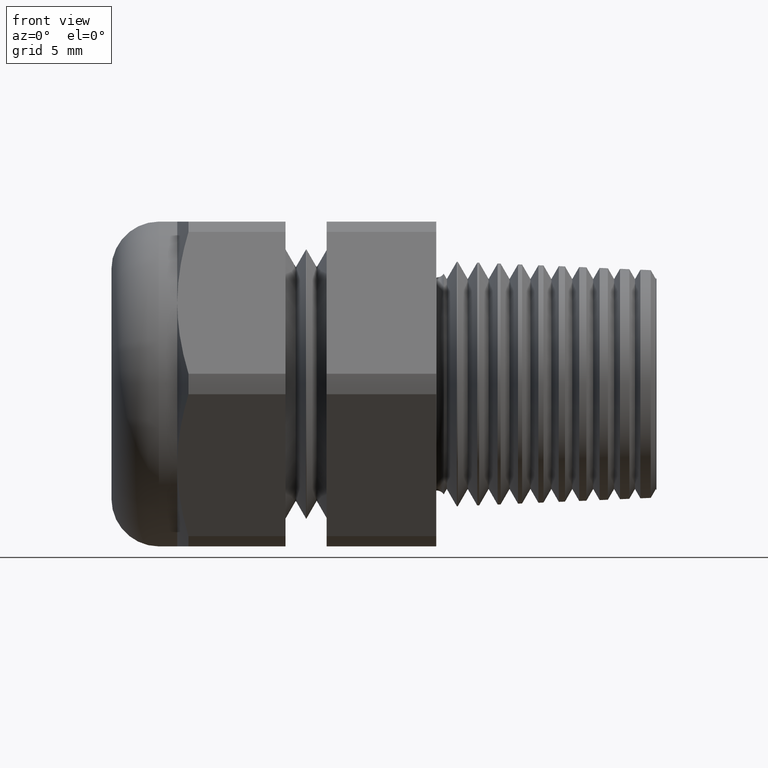
[diagram: clean part render]
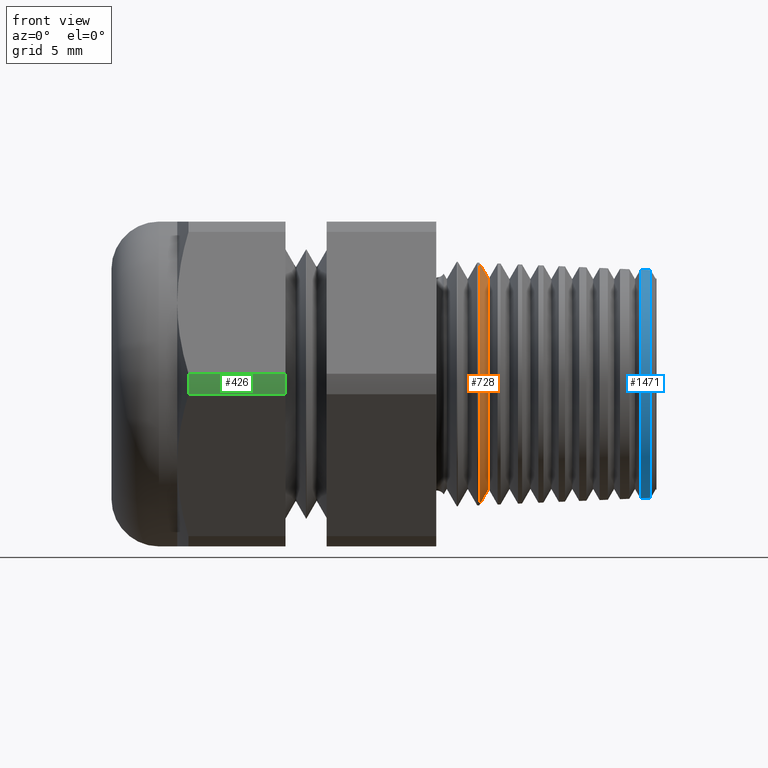
[diagram: same view with three faces highlighted in distinct colors, each labeled with its STEP entity id]
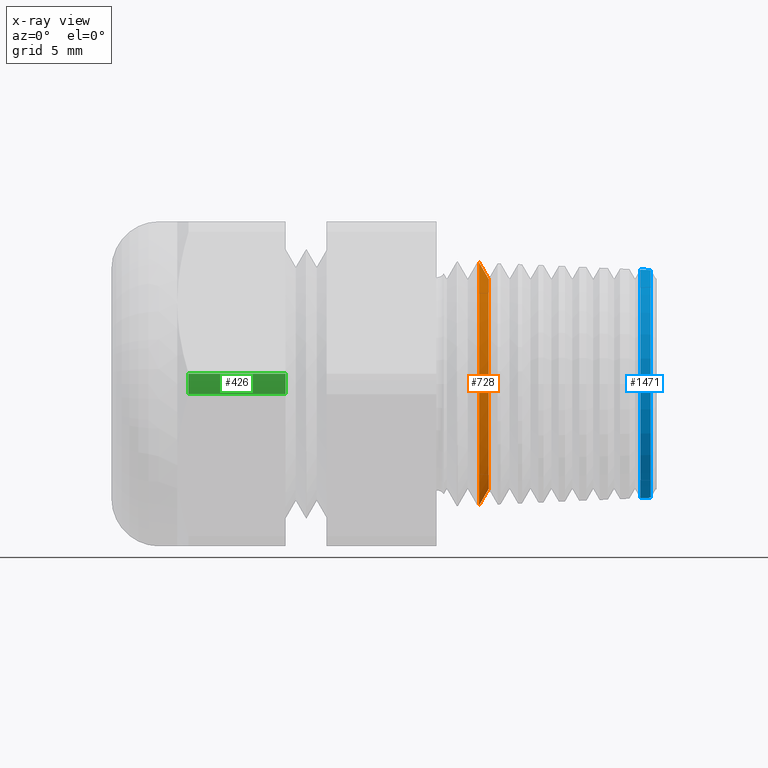
[diagram: x-ray of the same camera — body ghosted, the three highlighted faces saturated]
A machine part, front view with three faces highlighted in distinct colors.
The next image is the same camera in x-ray (body ghosted, the three faces saturated) — at least one of them is partly hidden behind the body in this view.
Their STEP definitions:

[orange] entity #728 — the highlighted conical surface has half-angle 60 deg.
#48 = VERTEX_POINT ( 'NONE', #931 ) ;
#50 = VERTEX_POINT ( 'NONE', #930 ) ;
#52 = EDGE_CURVE ( 'NONE', #467, #50, #993, .T. ) ;
#55 = EDGE_CURVE ( 'NONE', #325, #48, #984, .T. ) ;
#325 = VERTEX_POINT ( 'NONE', #1571 ) ;
#431 = EDGE_CURVE ( 'NONE', #48, #50, #1785, .T. ) ;
#467 = VERTEX_POINT ( 'NONE', #1908 ) ;
#728 = ADVANCED_FACE ( 'NONE', ( #2300 ), #2299, .T. ) ;
#729 = EDGE_LOOP ( 'NONE', ( #730, #731, #780, #781 ) ) ;
#730 = ORIENTED_EDGE ( 'NONE', *, *, #52, .F. ) ;
#731 = ORIENTED_EDGE ( 'NONE', *, *, #732, .T. ) ;
#732 = EDGE_CURVE ( 'NONE', #467, #325, #2298, .T. ) ;
#780 = ORIENTED_EDGE ( 'NONE', *, *, #55, .T. ) ;
#781 = ORIENTED_EDGE ( 'NONE', *, *, #431, .T. ) ;
#930 = CARTESIAN_POINT ( 'NONE',  ( 0.1148962656718725000, 3.981286690388741000E-017, -0.3249835207040991400 ) ) ;
#931 = CARTESIAN_POINT ( 'NONE',  ( 0.1148962656718725000, 0.0000000000000000000, 0.3249835207040991400 ) ) ;
#981 = DIRECTION ( 'NONE',  ( -0.4999999999999931200, 0.0000000000000000000, 0.8660254037844425900 ) ) ;
#982 = VECTOR ( 'NONE', #981, 39.37007874015748100 ) ;
#983 = CARTESIAN_POINT ( 'NONE',  ( 0.1120000000000000200, 0.0000000000000000000, 0.3300000000000000200 ) ) ;
#984 = LINE ( 'NONE', #983, #982 ) ;
#990 = DIRECTION ( 'NONE',  ( -0.4999999999999931200, 1.060575238724911700E-016, -0.8660254037844425900 ) ) ;
#991 = VECTOR ( 'NONE', #990, 39.37007874015748100 ) ;
#992 = CARTESIAN_POINT ( 'NONE',  ( 0.1120000000000000200, 4.041334437186265900E-017, -0.3300000000000000200 ) ) ;
#993 = LINE ( 'NONE', #992, #991 ) ;
#1571 = CARTESIAN_POINT ( 'NONE',  ( 0.1402379998258641300, 0.0000000000000000000, 0.2810903495974813600 ) ) ;
#1785 = CIRCLE ( 'NONE', #1847, 0.3249835207040991400 ) ;
#1844 = DIRECTION ( 'NONE',  ( 0.0000000000000000000, 0.0000000000000000000, 1.000000000000000000 ) ) ;
#1845 = DIRECTION ( 'NONE',  ( 1.000000000000000000, 0.0000000000000000000, 0.0000000000000000000 ) ) ;
#1846 = CARTESIAN_POINT ( 'NONE',  ( 0.1148962656718725000, 0.0000000000000000000, 0.0000000000000000000 ) ) ;
#1847 = AXIS2_PLACEMENT_3D ( 'NONE', #1846, #1845, #1844 ) ;
#1908 = CARTESIAN_POINT ( 'NONE',  ( 0.1402379998258641300, 3.711132126558393200E-017, -0.2810903495974813600 ) ) ;
#2295 = DIRECTION ( 'NONE',  ( 0.0000000000000000000, 0.0000000000000000000, 1.000000000000000000 ) ) ;
#2296 = DIRECTION ( 'NONE',  ( -1.000000000000000000, 0.0000000000000000000, 0.0000000000000000000 ) ) ;
#2297 = AXIS2_PLACEMENT_3D ( 'NONE', #2305, #2296, #2295 ) ;
#2298 = CIRCLE ( 'NONE', #2358, 0.2810903495974813600 ) ;
#2299 = CONICAL_SURFACE ( 'NONE', #2297, 0.3300000000000000200, 1.047197551196605600 ) ;
#2300 = FACE_OUTER_BOUND ( 'NONE', #729, .T. ) ;
#2305 = CARTESIAN_POINT ( 'NONE',  ( 0.1120000000000000200, 0.0000000000000000000, 0.0000000000000000000 ) ) ;
#2355 = DIRECTION ( 'NONE',  ( 0.0000000000000000000, 0.0000000000000000000, 1.000000000000000000 ) ) ;
#2356 = DIRECTION ( 'NONE',  ( -1.000000000000000000, 0.0000000000000000000, 0.0000000000000000000 ) ) ;
#2357 = CARTESIAN_POINT ( 'NONE',  ( 0.1402379998258641300, 0.0000000000000000000, 0.0000000000000000000 ) ) ;
#2358 = AXIS2_PLACEMENT_3D ( 'NONE', #2357, #2356, #2355 ) ;

[blue] entity #1471 — the highlighted conical surface has half-angle 2.5 deg.
#13 = VERTEX_POINT ( 'NONE', #866 ) ;
#14 = VERTEX_POINT ( 'NONE', #865 ) ;
#357 = VERTEX_POINT ( 'NONE', #1678 ) ;
#363 = VERTEX_POINT ( 'NONE', #1676 ) ;
#865 = CARTESIAN_POINT ( 'NONE',  ( 0.5466950970836134100, 3.749020756565806400E-017, -0.3061307765778689100 ) ) ;
#866 = CARTESIAN_POINT ( 'NONE',  ( 0.5466950970836134100, 0.0000000000000000000, 0.3061307765778689100 ) ) ;
#1379 = EDGE_CURVE ( 'NONE', #363, #14, #2711, .T. ) ;
#1437 = ORIENTED_EDGE ( 'NONE', *, *, #1442, .F. ) ;
#1441 = ORIENTED_EDGE ( 'NONE', *, *, #3672, .T. ) ;
#1442 = EDGE_CURVE ( 'NONE', #14, #13, #2797, .T. ) ;
#1446 = EDGE_CURVE ( 'NONE', #357, #363, #2785, .T. ) ;
#1447 = ORIENTED_EDGE ( 'NONE', *, *, #1446, .F. ) ;
#1453 = EDGE_LOOP ( 'NONE', ( #1459, #1447, #1441, #1437 ) ) ;
#1459 = ORIENTED_EDGE ( 'NONE', *, *, #1379, .F. ) ;
#1471 = ADVANCED_FACE ( 'NONE', ( #2863 ), #2861, .T. ) ;
#1676 = CARTESIAN_POINT ( 'NONE',  ( 0.5744813283593626100, 3.741592214058186900E-017, -0.3049176035204956300 ) ) ;
#1678 = CARTESIAN_POINT ( 'NONE',  ( 0.5744813283593626100, 0.0000000000000000000, 0.3049176035204956300 ) ) ;
#2708 = DIRECTION ( 'NONE',  ( -0.9990482215818576900, 5.341834311772733300E-018, -0.04361938736533608300 ) ) ;
#2709 = VECTOR ( 'NONE', #2708, 39.37007874015748100 ) ;
#2710 = CARTESIAN_POINT ( 'NONE',  ( 0.5899999999999999700, 3.725865956700344000E-017, -0.3042400436839778900 ) ) ;
#2711 = LINE ( 'NONE', #2710, #2709 ) ;
#2781 = DIRECTION ( 'NONE',  ( 0.0000000000000000000, 0.0000000000000000000, 1.000000000000000000 ) ) ;
#2782 = DIRECTION ( 'NONE',  ( 1.000000000000000000, 0.0000000000000000000, 0.0000000000000000000 ) ) ;
#2783 = CARTESIAN_POINT ( 'NONE',  ( 0.5744813283593626100, 0.0000000000000000000, 0.0000000000000000000 ) ) ;
#2784 = AXIS2_PLACEMENT_3D ( 'NONE', #2783, #2782, #2781 ) ;
#2785 = CIRCLE ( 'NONE', #2784, 0.3049176035204956300 ) ;
#2789 = DIRECTION ( 'NONE',  ( 0.0000000000000000000, 0.0000000000000000000, -1.000000000000000000 ) ) ;
#2790 = DIRECTION ( 'NONE',  ( -1.000000000000000000, 0.0000000000000000000, 0.0000000000000000000 ) ) ;
#2791 = CARTESIAN_POINT ( 'NONE',  ( 0.5466950970836134100, 0.0000000000000000000, 0.0000000000000000000 ) ) ;
#2792 = AXIS2_PLACEMENT_3D ( 'NONE', #2791, #2790, #2789 ) ;
#2797 = CIRCLE ( 'NONE', #2792, 0.3061307765778689100 ) ;
#2858 = DIRECTION ( 'NONE',  ( 0.0000000000000000000, 0.0000000000000000000, 1.000000000000000000 ) ) ;
#2859 = DIRECTION ( 'NONE',  ( -1.000000000000000000, 0.0000000000000000000, 0.0000000000000000000 ) ) ;
#2860 = AXIS2_PLACEMENT_3D ( 'NONE', #2862, #2859, #2858 ) ;
#2861 = CONICAL_SURFACE ( 'NONE', #2860, 0.3042400436839778900, 0.04363323129985832000 ) ;
#2862 = CARTESIAN_POINT ( 'NONE',  ( 0.5899999999999999700, 0.0000000000000000000, 0.0000000000000000000 ) ) ;
#2863 = FACE_OUTER_BOUND ( 'NONE', #1453, .T. ) ;
#3260 = DIRECTION ( 'NONE',  ( -0.9990482215818576900, 0.0000000000000000000, 0.04361938736533608300 ) ) ;
#3261 = VECTOR ( 'NONE', #3260, 39.37007874015748100 ) ;
#3262 = CARTESIAN_POINT ( 'NONE',  ( 0.5899999999999999700, 0.0000000000000000000, 0.3042400436839778900 ) ) ;
#3268 = LINE ( 'NONE', #3262, #3261 ) ;
#3672 = EDGE_CURVE ( 'NONE', #357, #13, #3268, .T. ) ;

[green] entity #426 — the highlighted cylindrical surface (partial cylindrical patch) has radius 12.3749 mm, axis along (-1, 0, 0).
#359 = VERTEX_POINT ( 'NONE', #1677 ) ;
#368 = VERTEX_POINT ( 'NONE', #1666 ) ;
#369 = ORIENTED_EDGE ( 'NONE', *, *, #471, .T. ) ;
#373 = ORIENTED_EDGE ( 'NONE', *, *, #377, .T. ) ;
#377 = EDGE_CURVE ( 'NONE', #400, #368, #1717, .T. ) ;
#400 = VERTEX_POINT ( 'NONE', #1724 ) ;
#401 = EDGE_CURVE ( 'NONE', #400, #359, #1783, .T. ) ;
#411 = EDGE_LOOP ( 'NONE', ( #412, #373, #369, #439 ) ) ;
#412 = ORIENTED_EDGE ( 'NONE', *, *, #401, .F. ) ;
#426 = ADVANCED_FACE ( 'NONE', ( #1792 ), #1791, .T. ) ;
#437 = VERTEX_POINT ( 'NONE', #1837 ) ;
#439 = ORIENTED_EDGE ( 'NONE', *, *, #449, .F. ) ;
#449 = EDGE_CURVE ( 'NONE', #359, #437, #1822, .T. ) ;
#471 = EDGE_CURVE ( 'NONE', #368, #437, #1897, .T. ) ;
#1666 = CARTESIAN_POINT ( 'NONE',  ( -0.4037500000000000500, -0.4864238764986216200, -0.02748913188977887900 ) ) ;
#1677 = CARTESIAN_POINT ( 'NONE',  ( -0.6636123159483016100, -0.4864238764986216200, 0.02748913188977842800 ) ) ;
#1714 = DIRECTION ( 'NONE',  ( 1.000000000000000000, 0.0000000000000000000, 0.0000000000000000000 ) ) ;
#1715 = VECTOR ( 'NONE', #1714, 39.37007874015748100 ) ;
#1716 = CARTESIAN_POINT ( 'NONE',  ( -2.085539792128106900, -0.4864238764986216200, -0.02748913188977887900 ) ) ;
#1717 = LINE ( 'NONE', #1716, #1715 ) ;
#1724 = CARTESIAN_POINT ( 'NONE',  ( -0.6636123159483016100, -0.4864238764986216200, -0.02748913188977888300 ) ) ;
#1779 = DIRECTION ( 'NONE',  ( 0.0000000000000000000, 0.0000000000000000000, -1.000000000000000000 ) ) ;
#1780 = DIRECTION ( 'NONE',  ( -1.000000000000000000, 0.0000000000000000000, 0.0000000000000000000 ) ) ;
#1781 = CARTESIAN_POINT ( 'NONE',  ( -0.6636123159483016100, 0.0000000000000000000, 0.0000000000000000000 ) ) ;
#1782 = AXIS2_PLACEMENT_3D ( 'NONE', #1781, #1780, #1779 ) ;
#1783 = CIRCLE ( 'NONE', #1782, 0.4871999999999999100 ) ;
#1786 = DIRECTION ( 'NONE',  ( 0.0000000000000000000, 0.0000000000000000000, 1.000000000000000000 ) ) ;
#1787 = DIRECTION ( 'NONE',  ( -1.000000000000000000, 0.0000000000000000000, 0.0000000000000000000 ) ) ;
#1788 = CARTESIAN_POINT ( 'NONE',  ( -0.7238591030180623300, 0.0000000000000000000, 0.0000000000000000000 ) ) ;
#1789 = AXIS2_PLACEMENT_3D ( 'NONE', #1788, #1787, #1786 ) ;
#1791 = CYLINDRICAL_SURFACE ( 'NONE', #1789, 0.4871999999999999100 ) ;
#1792 = FACE_OUTER_BOUND ( 'NONE', #411, .T. ) ;
#1819 = DIRECTION ( 'NONE',  ( 1.000000000000000000, 0.0000000000000000000, 0.0000000000000000000 ) ) ;
#1820 = VECTOR ( 'NONE', #1819, 39.37007874015748100 ) ;
#1821 = CARTESIAN_POINT ( 'NONE',  ( -2.085539792128106900, -0.4864238764986216800, 0.02748913188977840000 ) ) ;
#1822 = LINE ( 'NONE', #1821, #1820 ) ;
#1837 = CARTESIAN_POINT ( 'NONE',  ( -0.4037499999999999400, -0.4864238764986216800, 0.02748913188977839700 ) ) ;
#1893 = DIRECTION ( 'NONE',  ( 0.0000000000000000000, 0.0000000000000000000, 1.000000000000000000 ) ) ;
#1894 = DIRECTION ( 'NONE',  ( -1.000000000000000000, 0.0000000000000000000, 0.0000000000000000000 ) ) ;
#1895 = CARTESIAN_POINT ( 'NONE',  ( -0.4037499999999999400, 0.0000000000000000000, 0.0000000000000000000 ) ) ;
#1896 = AXIS2_PLACEMENT_3D ( 'NONE', #1895, #1894, #1893 ) ;
#1897 = CIRCLE ( 'NONE', #1896, 0.4872000000000000200 ) ;